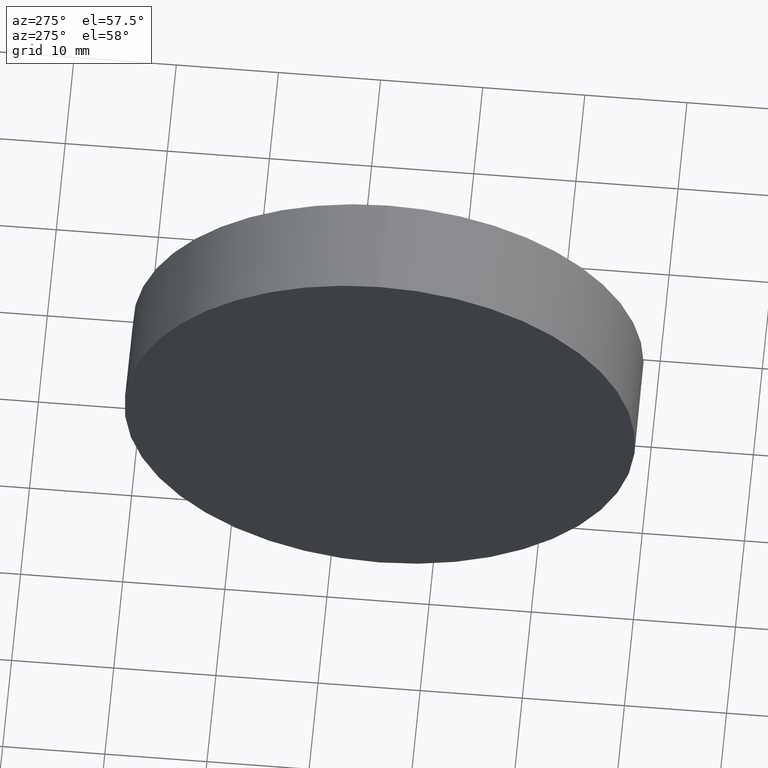
[diagram: clean part render]
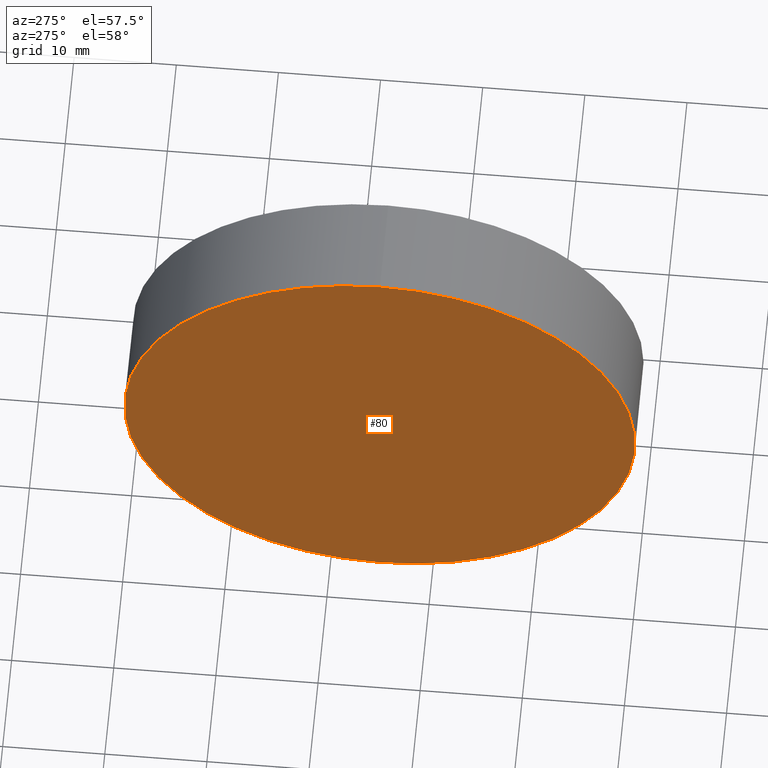
[diagram: same view with one face highlighted and labeled with its STEP entity id]
A machine part, auxiliary view. The second image highlights one B-rep face of the part: STEP entity #80.
In plain terms, the highlighted planar face has unit normal (1, 0, 0).
Its self-contained STEP definition (entity closure, byte-faithful):
#26 = EDGE_CURVE ( 'NONE', #145, #160, #84, .T. ) ;
#32 = PLANE ( 'NONE',  #106 ) ;
#37 = CARTESIAN_POINT ( 'NONE',  ( 113.7394371346435000, 65.15563045701519200, 0.0000000000000000000 ) ) ;
#38 = FACE_OUTER_BOUND ( 'NONE', #97, .T. ) ;
#41 = DIRECTION ( 'NONE',  ( -1.000000000000000000, -0.0000000000000000000, -0.0000000000000000000 ) ) ;
#61 = AXIS2_PLACEMENT_3D ( 'NONE', #37, #146, #115 ) ;
#68 = DIRECTION ( 'NONE',  ( 0.0000000000000000000, 0.0000000000000000000, 1.000000000000000000 ) ) ;
#71 = DIRECTION ( 'NONE',  ( 1.000000000000000000, 0.0000000000000000000, 0.0000000000000000000 ) ) ;
#76 = AXIS2_PLACEMENT_3D ( 'NONE', #148, #41, #68 ) ;
#79 = ORIENTED_EDGE ( 'NONE', *, *, #26, .T. ) ;
#80 = ADVANCED_FACE ( 'NONE', ( #38 ), #32, .F. ) ;
#84 = CIRCLE ( 'NONE', #61, 24.99999999999999300 ) ;
#97 = EDGE_LOOP ( 'NONE', ( #111, #79 ) ) ;
#106 = AXIS2_PLACEMENT_3D ( 'NONE', #181, #71, #138 ) ;
#111 = ORIENTED_EDGE ( 'NONE', *, *, #176, .T. ) ;
#115 = DIRECTION ( 'NONE',  ( 0.0000000000000000000, 0.0000000000000000000, 1.000000000000000000 ) ) ;
#127 = CARTESIAN_POINT ( 'NONE',  ( 113.7394371346435000, 65.15563045701519200, -24.99999999999999300 ) ) ;
#138 = DIRECTION ( 'NONE',  ( 0.0000000000000000000, 0.0000000000000000000, -1.000000000000000000 ) ) ;
#145 = VERTEX_POINT ( 'NONE', #127 ) ;
#146 = DIRECTION ( 'NONE',  ( -1.000000000000000000, -0.0000000000000000000, -0.0000000000000000000 ) ) ;
#148 = CARTESIAN_POINT ( 'NONE',  ( 113.7394371346435000, 65.15563045701519200, 0.0000000000000000000 ) ) ;
#160 = VERTEX_POINT ( 'NONE', #167 ) ;
#167 = CARTESIAN_POINT ( 'NONE',  ( 113.7394371346435000, 65.15563045701519200, 24.99999999999999300 ) ) ;
#175 = CIRCLE ( 'NONE', #76, 24.99999999999999300 ) ;
#176 = EDGE_CURVE ( 'NONE', #160, #145, #175, .T. ) ;
#181 = CARTESIAN_POINT ( 'NONE',  ( 113.7394371346435000, 65.15563045701519200, 0.0000000000000000000 ) ) ;